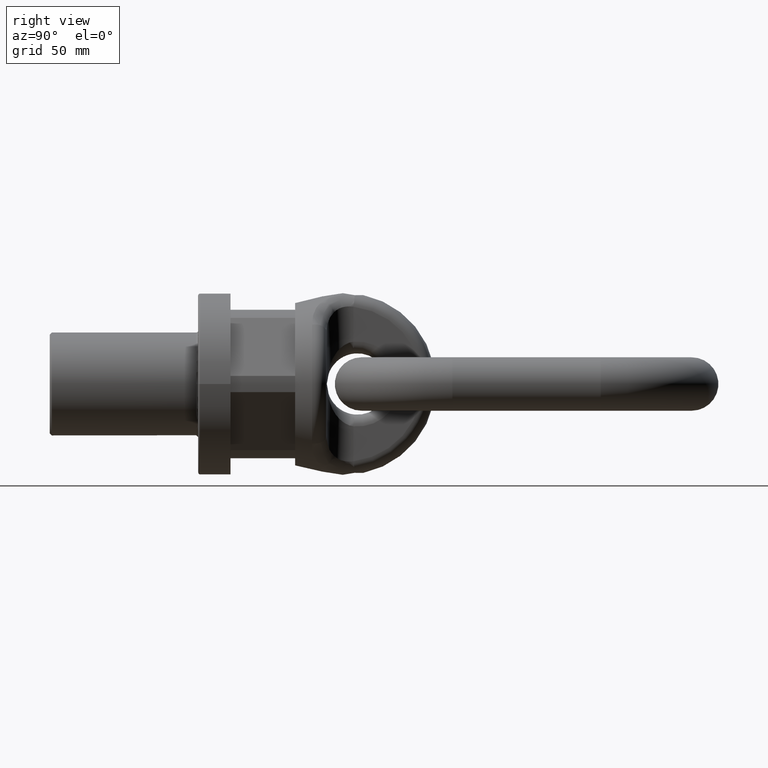
[diagram: clean part render]
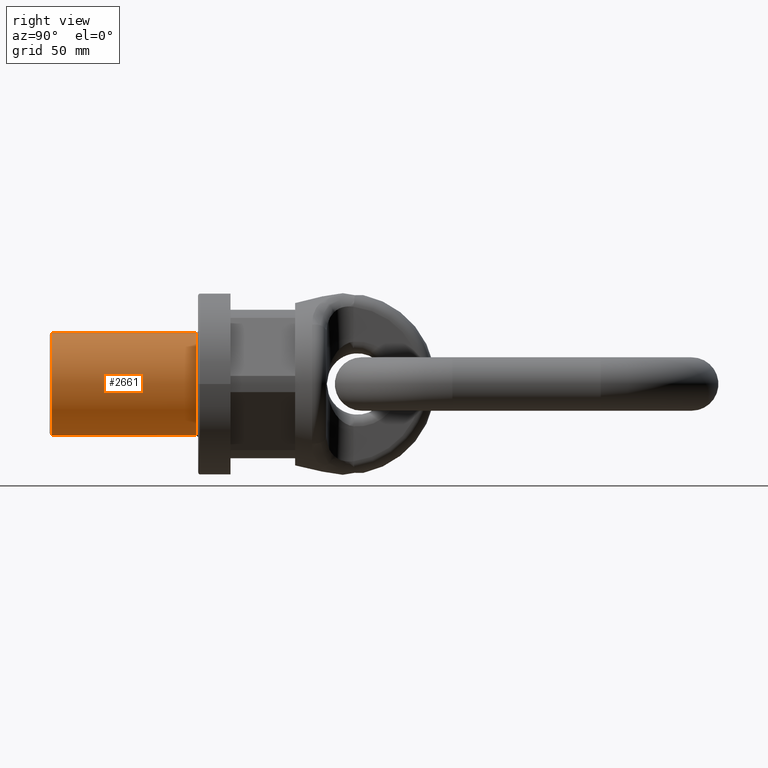
[diagram: same view with one face highlighted and labeled with its STEP entity id]
A machine part, right view. The second image highlights one B-rep face of the part: STEP entity #2661.
In plain terms, the highlighted cylindrical surface (bore or boss wall) has radius 26 mm, axis along (0, 1, 0).
Its self-contained STEP definition (entity closure, byte-faithful):
#2027=CYLINDRICAL_SURFACE('',#5638,26.);
#2661=ADVANCED_FACE('',(#2999,#3000),#2027,.T.);
#2999=FACE_BOUND('',#3084,.T.);
#3000=FACE_BOUND('',#3085,.T.);
#3084=EDGE_LOOP('',(#3428));
#3085=EDGE_LOOP('',(#3429));
#3428=ORIENTED_EDGE('',*,*,#4981,.T.);
#3429=ORIENTED_EDGE('',*,*,#4982,.T.);
#4571=VERTEX_POINT('',#6655);
#4572=VERTEX_POINT('',#6657);
#4981=EDGE_CURVE('',#4571,#4571,#5553,.T.);
#4982=EDGE_CURVE('',#4572,#4572,#5554,.T.);
#5553=CIRCLE('',#5636,26.);
#5554=CIRCLE('',#5637,26.);
#5636=AXIS2_PLACEMENT_3D('',#6654,#5899,#5900);
#5637=AXIS2_PLACEMENT_3D('',#6656,#5901,#5902);
#5638=AXIS2_PLACEMENT_3D('',#6658,#5903,#5904);
#5899=DIRECTION('',(4.81111242522174E-17,-1.,0.));
#5900=DIRECTION('',(1.,5.00401002685617E-17,0.));
#5901=DIRECTION('',(0.,1.,0.));
#5902=DIRECTION('',(0.,0.,1.));
#5903=DIRECTION('',(0.,1.,0.));
#5904=DIRECTION('',(0.,0.,1.));
#6654=CARTESIAN_POINT('',(0.,-1.,0.));
#6655=CARTESIAN_POINT('',(26.,-1.,0.));
#6656=CARTESIAN_POINT('',(0.,-74.,0.));
#6657=CARTESIAN_POINT('',(0.,-74.,26.));
#6658=CARTESIAN_POINT('',(0.,-75.,0.));